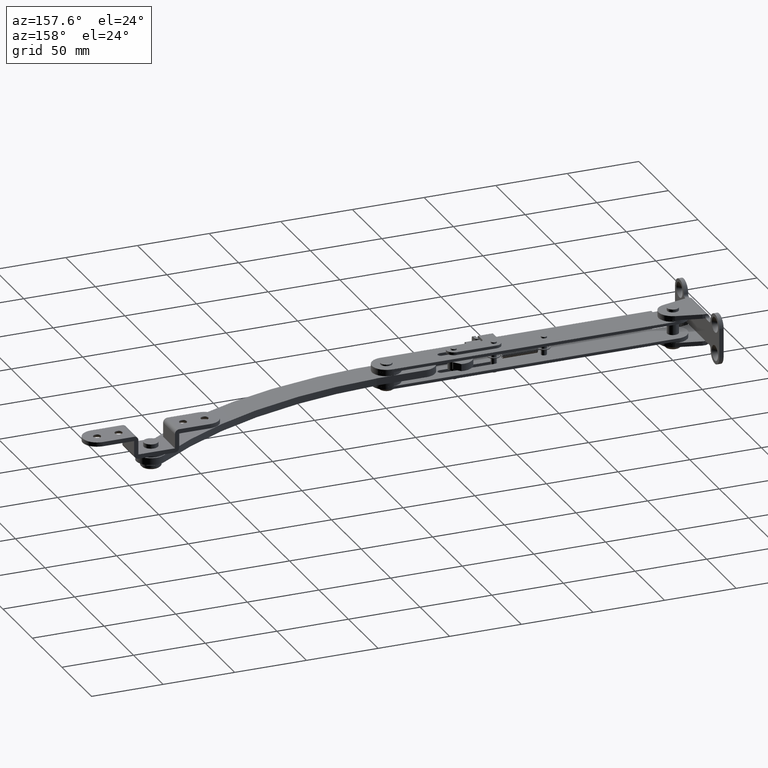
[diagram: clean part render]
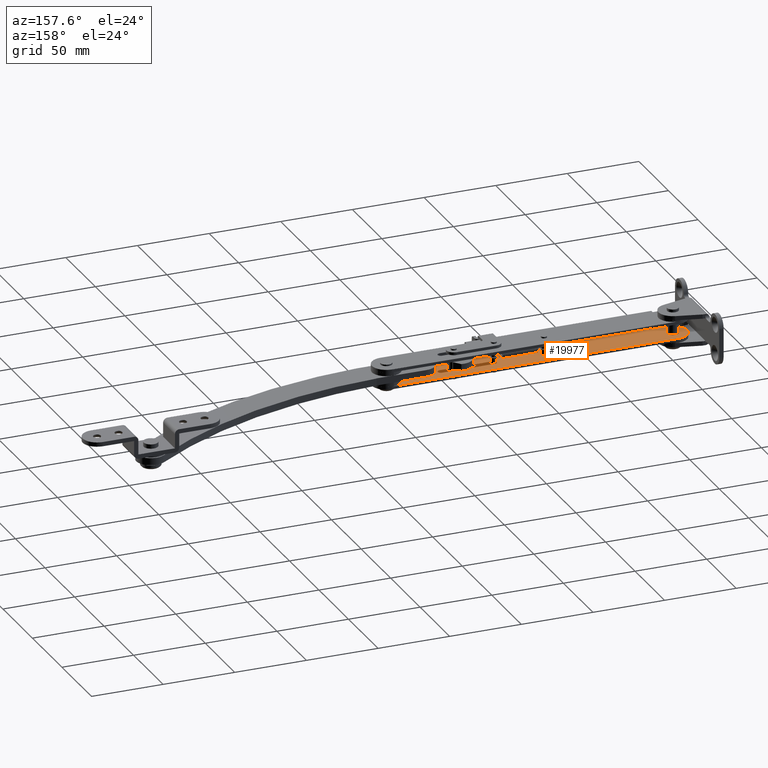
[diagram: same view with one face highlighted and labeled with its STEP entity id]
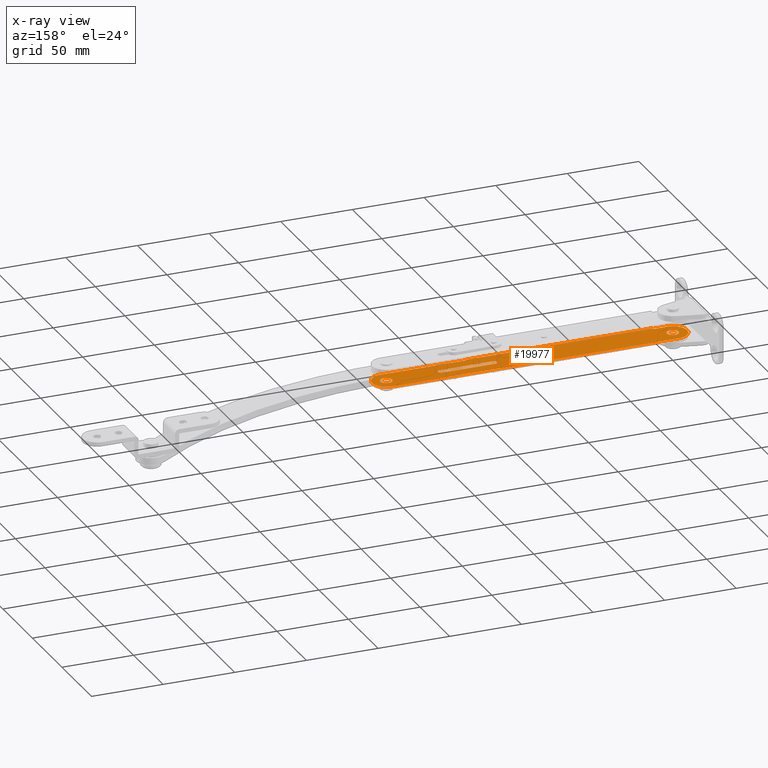
[diagram: x-ray of the same camera — body ghosted, the highlighted face saturated]
A machine part, auxiliary view. The second image highlights one B-rep face of the part: STEP entity #19977.
The next image is the same camera in x-ray: the body ghosted, the highlighted face saturated — about 0% of this face is hidden behind the body in this view.
In plain terms, the highlighted face is a freeform B-spline surface patch.
Its self-contained STEP definition (entity closure, byte-faithful):
#17774=CARTESIAN_POINT('',(89.751743990760332,1.984532427015592,-5.000000000000119));
#17775=VERTEX_POINT('',#17774);
#17776=CARTESIAN_POINT('',(88.0,0.0,-5.000000000000120));
#17777=VERTEX_POINT('',#17776);
#17778=CARTESIAN_POINT('',(89.751743990760332,1.984532427015592,-5.000000000000119));
#17779=CARTESIAN_POINT('',(88.000000000000014,1.765397191191886,-5.000000000000120));
#17780=CARTESIAN_POINT('',(88.0,0.0,-5.000000000000120));
#17788=(BOUNDED_CURVE()B_SPLINE_CURVE(2,(#17778,#17779,#17780),.UNSPECIFIED.,.F.,.U.)B_SPLINE_CURVE_WITH_KNOTS((3,3),(0.771473929834101,1.0),.UNSPECIFIED.)CURVE()GEOMETRIC_REPRESENTATION_ITEM()RATIONAL_B_SPLINE_CURVE((0.954005428599194,0.732265054905284,1.0))REPRESENTATION_ITEM(''));
#17789=EDGE_CURVE('',#17775,#17777,#17788,.T.);
#17791=CARTESIAN_POINT('',(90.017453075122191,-1.999923846092340,-5.000000000000121));
#17792=VERTEX_POINT('',#17791);
#17793=CARTESIAN_POINT('',(88.0,0.0,-5.000000000000120));
#17794=CARTESIAN_POINT('',(88.0,-2.000000000000000,-5.000000000000121));
#17795=CARTESIAN_POINT('',(90.0,-2.0,-5.000000000000120));
#17796=CARTESIAN_POINT('',(90.008726705767060,-2.0,-5.000000000000120));
#17797=CARTESIAN_POINT('',(90.017453075122191,-1.999923846092340,-5.000000000000121));
#17805=(BOUNDED_CURVE()B_SPLINE_CURVE(2,(#17793,#17794,#17795,#17796,#17797),.UNSPECIFIED.,.F.,.U.)B_SPLINE_CURVE_WITH_KNOTS((3,2,3),(0.0,0.250000000000000,0.251539895061680),.UNSPECIFIED.)CURVE()GEOMETRIC_REPRESENTATION_ITEM()RATIONAL_B_SPLINE_CURVE((1.0,0.707106781186548,1.0,0.998195900714998,0.996414026418634))REPRESENTATION_ITEM(''));
#17806=EDGE_CURVE('',#17777,#17792,#17805,.T.);
#17877=CARTESIAN_POINT('',(92.0,0.0,-5.000000000000120));
#17878=VERTEX_POINT('',#17877);
#17879=CARTESIAN_POINT('',(92.0,0.0,-5.000000000000120));
#17880=CARTESIAN_POINT('',(92.0,2.000000000000000,-5.000000000000121));
#17881=CARTESIAN_POINT('',(90.0,2.0,-5.000000000000120));
#17882=CARTESIAN_POINT('',(89.875390139793538,2.000000000000000,-5.000000000000119));
#17883=CARTESIAN_POINT('',(89.751743990760332,1.984532427015591,-5.000000000000119));
#17891=(BOUNDED_CURVE()B_SPLINE_CURVE(2,(#17879,#17880,#17881,#17882,#17883),.UNSPECIFIED.,.F.,.U.)B_SPLINE_CURVE_WITH_KNOTS((3,2,3),(0.500000000000000,0.750000000000000,0.771473929834101),.UNSPECIFIED.)CURVE()GEOMETRIC_REPRESENTATION_ITEM()RATIONAL_B_SPLINE_CURVE((1.0,0.707106781186548,1.0,0.974841726281264,0.954005428599194))REPRESENTATION_ITEM(''));
#17892=EDGE_CURVE('',#17878,#17775,#17891,.T.);
#17926=CARTESIAN_POINT('',(90.017453075122191,-1.999923846092340,-5.000000000000121));
#17927=CARTESIAN_POINT('',(92.0,-1.982622413010155,-5.000000000000121));
#17928=CARTESIAN_POINT('',(92.0,0.0,-5.000000000000120));
#17936=(BOUNDED_CURVE()B_SPLINE_CURVE(2,(#17926,#17927,#17928),.UNSPECIFIED.,.F.,.U.)B_SPLINE_CURVE_WITH_KNOTS((3,3),(0.251539895061680,0.500000000000000),.UNSPECIFIED.)CURVE()GEOMETRIC_REPRESENTATION_ITEM()RATIONAL_B_SPLINE_CURVE((0.996414026418634,0.708910880471549,1.0))REPRESENTATION_ITEM(''));
#17937=EDGE_CURVE('',#17792,#17878,#17936,.T.);
#18142=CARTESIAN_POINT('',(199.497250589896310,4.018678165783230,-5.000000000000120));
#18143=VERTEX_POINT('',#18142);
#18144=CARTESIAN_POINT('',(195.949969000000010,0.0,-5.000000000000120));
#18145=VERTEX_POINT('',#18144);
#18146=CARTESIAN_POINT('',(199.497250589896420,4.018678165783230,-5.000000000000120));
#18147=CARTESIAN_POINT('',(195.949969000000010,3.574929327595564,-5.000000000000120));
#18148=CARTESIAN_POINT('',(195.949969000000010,0.0,-5.000000000000120));
#18156=(BOUNDED_CURVE()B_SPLINE_CURVE(2,(#18146,#18147,#18148),.UNSPECIFIED.,.F.,.U.)B_SPLINE_CURVE_WITH_KNOTS((3,3),(0.771473929111733,1.0),.UNSPECIFIED.)CURVE()GEOMETRIC_REPRESENTATION_ITEM()RATIONAL_B_SPLINE_CURVE((0.954005430001031,0.732265054058977,1.0))REPRESENTATION_ITEM(''));
#18157=EDGE_CURVE('',#18143,#18145,#18156,.T.);
#18159=CARTESIAN_POINT('',(200.035311472254590,-4.049845788379470,-5.000000000000119));
#18160=VERTEX_POINT('',#18159);
#18161=CARTESIAN_POINT('',(195.949969000000010,0.0,-5.000000000000120));
#18162=CARTESIAN_POINT('',(195.949969000000010,-4.050000000000001,-5.000000000000121));
#18163=CARTESIAN_POINT('',(199.999968999999990,-4.050000000000000,-5.000000000000120));
#18164=CARTESIAN_POINT('',(200.017640574310180,-4.050000000000000,-5.000000000000121));
#18165=CARTESIAN_POINT('',(200.035311472254620,-4.049845788379470,-5.000000000000119));
#18173=(BOUNDED_CURVE()B_SPLINE_CURVE(2,(#18161,#18162,#18163,#18164,#18165),.UNSPECIFIED.,.F.,.U.)B_SPLINE_CURVE_WITH_KNOTS((3,2,3),(0.0,0.250000000000000,0.251539894638242),.UNSPECIFIED.)CURVE()GEOMETRIC_REPRESENTATION_ITEM()RATIONAL_B_SPLINE_CURVE((1.0,0.707106781186548,1.0,0.998195901211086,0.996414027398588))REPRESENTATION_ITEM(''));
#18174=EDGE_CURVE('',#18145,#18160,#18173,.T.);
#18245=CARTESIAN_POINT('',(204.049969000000000,0.0,-5.000000000000120));
#18246=VERTEX_POINT('',#18245);
#18247=CARTESIAN_POINT('',(204.049969000000000,0.0,-5.000000000000120));
#18248=CARTESIAN_POINT('',(204.049968999999980,4.050000000000001,-5.000000000000121));
#18249=CARTESIAN_POINT('',(199.999968999999990,4.050000000000000,-5.000000000000120));
#18250=CARTESIAN_POINT('',(199.747634041789380,4.049999999999999,-5.000000000000121));
#18251=CARTESIAN_POINT('',(199.497250589896310,4.018678165783231,-5.000000000000120));
#18259=(BOUNDED_CURVE()B_SPLINE_CURVE(2,(#18247,#18248,#18249,#18250,#18251),.UNSPECIFIED.,.F.,.U.)B_SPLINE_CURVE_WITH_KNOTS((3,2,3),(0.500000000000000,0.750000000000000,0.771473929111732),.UNSPECIFIED.)CURVE()GEOMETRIC_REPRESENTATION_ITEM()RATIONAL_B_SPLINE_CURVE((1.0,0.707106781186548,1.0,0.974841727127572,0.954005430001033))REPRESENTATION_ITEM(''));
#18260=EDGE_CURVE('',#18246,#18143,#18259,.T.);
#18294=CARTESIAN_POINT('',(200.035311472254620,-4.049845788379470,-5.000000000000119));
#18295=CARTESIAN_POINT('',(204.049969000000030,-4.014810395997320,-5.000000000000120));
#18296=CARTESIAN_POINT('',(204.049969000000000,0.0,-5.000000000000120));
#18304=(BOUNDED_CURVE()B_SPLINE_CURVE(2,(#18294,#18295,#18296),.UNSPECIFIED.,.F.,.U.)B_SPLINE_CURVE_WITH_KNOTS((3,3),(0.251539894638242,0.500000000000000),.UNSPECIFIED.)CURVE()GEOMETRIC_REPRESENTATION_ITEM()RATIONAL_B_SPLINE_CURVE((0.996414027398588,0.708910879975461,1.0))REPRESENTATION_ITEM(''));
#18305=EDGE_CURVE('',#18160,#18246,#18304,.T.);
#18510=CARTESIAN_POINT('',(-0.502718410103622,4.018678165783232,-5.000000000000120));
#18511=VERTEX_POINT('',#18510);
#18512=CARTESIAN_POINT('',(-4.050000000000000,0.0,-5.000000000000120));
#18513=VERTEX_POINT('',#18512);
#18514=CARTESIAN_POINT('',(-0.502718410103622,4.018678165783233,-5.000000000000120));
#18515=CARTESIAN_POINT('',(-4.050000000000001,3.574929327595585,-5.000000000000120));
#18516=CARTESIAN_POINT('',(-4.050000000000000,0.0,-5.000000000000120));
#18524=(BOUNDED_CURVE()B_SPLINE_CURVE(2,(#18514,#18515,#18516),.UNSPECIFIED.,.F.,.U.)B_SPLINE_CURVE_WITH_KNOTS((3,3),(0.771473929111732,1.0),.UNSPECIFIED.)CURVE()GEOMETRIC_REPRESENTATION_ITEM()RATIONAL_B_SPLINE_CURVE((0.954005430001033,0.732265054058975,1.0))REPRESENTATION_ITEM(''));
#18525=EDGE_CURVE('',#18511,#18513,#18524,.T.);
#18527=CARTESIAN_POINT('',(0.035342472254599,-4.049845788379469,-5.000000000000120));
#18528=VERTEX_POINT('',#18527);
#18529=CARTESIAN_POINT('',(-4.050000000000000,0.0,-5.000000000000120));
#18530=CARTESIAN_POINT('',(-4.050000000000001,-4.050000000000001,-5.000000000000121));
#18531=CARTESIAN_POINT('',(0.0,-4.050000000000000,-5.000000000000120));
#18532=CARTESIAN_POINT('',(0.017671574310225,-4.050000000000000,-5.000000000000120));
#18533=CARTESIAN_POINT('',(0.035342472254599,-4.049845788379469,-5.000000000000120));
#18541=(BOUNDED_CURVE()B_SPLINE_CURVE(2,(#18529,#18530,#18531,#18532,#18533),.UNSPECIFIED.,.F.,.U.)B_SPLINE_CURVE_WITH_KNOTS((3,2,3),(0.0,0.250000000000000,0.251539894638241),.UNSPECIFIED.)CURVE()GEOMETRIC_REPRESENTATION_ITEM()RATIONAL_B_SPLINE_CURVE((1.0,0.707106781186548,1.0,0.998195901211088,0.996414027398591))REPRESENTATION_ITEM(''));
#18542=EDGE_CURVE('',#18513,#18528,#18541,.T.);
#18613=CARTESIAN_POINT('',(4.050000000000000,0.0,-5.000000000000120));
#18614=VERTEX_POINT('',#18613);
#18615=CARTESIAN_POINT('',(4.050000000000000,0.0,-5.000000000000120));
#18616=CARTESIAN_POINT('',(4.050000000000001,4.050000000000001,-5.000000000000121));
#18617=CARTESIAN_POINT('',(0.0,4.050000000000000,-5.000000000000120));
#18618=CARTESIAN_POINT('',(-0.252334958210638,4.049999999999999,-5.000000000000121));
#18619=CARTESIAN_POINT('',(-0.502718410103622,4.018678165783233,-5.000000000000120));
#18627=(BOUNDED_CURVE()B_SPLINE_CURVE(2,(#18615,#18616,#18617,#18618,#18619),.UNSPECIFIED.,.F.,.U.)B_SPLINE_CURVE_WITH_KNOTS((3,2,3),(0.500000000000000,0.750000000000000,0.771473929111732),.UNSPECIFIED.)CURVE()GEOMETRIC_REPRESENTATION_ITEM()RATIONAL_B_SPLINE_CURVE((1.0,0.707106781186548,1.0,0.974841727127572,0.954005430001033))REPRESENTATION_ITEM(''));
#18628=EDGE_CURVE('',#18614,#18511,#18627,.T.);
#18662=CARTESIAN_POINT('',(0.035342472254599,-4.049845788379469,-5.000000000000120));
#18663=CARTESIAN_POINT('',(4.049999999999999,-4.014810395997347,-5.000000000000119));
#18664=CARTESIAN_POINT('',(4.050000000000000,0.0,-5.000000000000120));
#18672=(BOUNDED_CURVE()B_SPLINE_CURVE(2,(#18662,#18663,#18664),.UNSPECIFIED.,.F.,.U.)B_SPLINE_CURVE_WITH_KNOTS((3,3),(0.251539894638241,0.500000000000000),.UNSPECIFIED.)CURVE()GEOMETRIC_REPRESENTATION_ITEM()RATIONAL_B_SPLINE_CURVE((0.996414027398591,0.708910879975460,1.0))REPRESENTATION_ITEM(''));
#18673=EDGE_CURVE('',#18528,#18614,#18672,.T.);
#18987=CARTESIAN_POINT('',(125.0,-2.100006000000000,-5.000000000000110));
#18988=VERTEX_POINT('',#18987);
#18989=CARTESIAN_POINT('',(161.999969146607500,-2.100000000000000,-5.000000000000120));
#18990=VERTEX_POINT('',#18989);
#18991=CARTESIAN_POINT('',(125.0,-2.100006000000000,-5.000000000000110));
#18992=CARTESIAN_POINT('',(161.999969146607500,-2.100000000000000,-5.000000000000120));
#18993=QUASI_UNIFORM_CURVE('',1,(#18991,#18992),.UNSPECIFIED.,.F.,.U.);
#18994=EDGE_CURVE('',#18988,#18990,#18993,.T.);
#19036=CARTESIAN_POINT('',(161.999968999999990,2.100006000000095,-5.000000000000120));
#19037=VERTEX_POINT('',#19036);
#19038=CARTESIAN_POINT('',(161.999969146607500,-2.100000000000000,-5.000000000000120));
#19039=CARTESIAN_POINT('',(164.099969073303670,-2.099999853392396,-5.000000000000120));
#19040=CARTESIAN_POINT('',(164.099968999999990,0.000003073303797,-5.000000000000120));
#19041=CARTESIAN_POINT('',(164.099968926696250,2.100005999999990,-5.000000000000120));
#19042=CARTESIAN_POINT('',(161.999968999999990,2.100006000000095,-5.000000000000120));
#19050=(BOUNDED_CURVE()B_SPLINE_CURVE(2,(#19038,#19039,#19040,#19041,#19042),.UNSPECIFIED.,.F.,.U.)B_SPLINE_CURVE_WITH_KNOTS((3,2,3),(0.0,0.500000000000000,1.0),.UNSPECIFIED.)CURVE()GEOMETRIC_REPRESENTATION_ITEM()RATIONAL_B_SPLINE_CURVE((1.0,0.707106793527876,1.0,0.707106793527876,1.0))REPRESENTATION_ITEM(''));
#19051=EDGE_CURVE('',#18990,#19037,#19050,.T.);
#19084=CARTESIAN_POINT('',(125.0,2.100006000000095,-5.000000000000120));
#19085=VERTEX_POINT('',#19084);
#19086=CARTESIAN_POINT('',(161.999968999999990,2.100006000000095,-5.000000000000120));
#19087=CARTESIAN_POINT('',(125.0,2.100006000000095,-5.000000000000120));
#19088=QUASI_UNIFORM_CURVE('',1,(#19086,#19087),.UNSPECIFIED.,.F.,.U.);
#19089=EDGE_CURVE('',#19037,#19085,#19088,.T.);
#19125=CARTESIAN_POINT('',(125.0,2.100006000000095,-5.000000000000120));
#19126=CARTESIAN_POINT('',(122.899999999999990,2.100006000000095,-5.000000000000121));
#19127=CARTESIAN_POINT('',(122.900000000000010,4.751755E-014,-5.000000000000116));
#19128=CARTESIAN_POINT('',(122.899999999999990,-2.100006000000000,-5.000000000000110));
#19129=CARTESIAN_POINT('',(125.0,-2.100006000000000,-5.000000000000110));
#19137=(BOUNDED_CURVE()B_SPLINE_CURVE(2,(#19125,#19126,#19127,#19128,#19129),.UNSPECIFIED.,.F.,.U.)B_SPLINE_CURVE_WITH_KNOTS((3,2,3),(0.0,0.500000000000000,1.0),.UNSPECIFIED.)CURVE()GEOMETRIC_REPRESENTATION_ITEM()RATIONAL_B_SPLINE_CURVE((1.0,0.707106781186548,1.0,0.707106781186548,1.0))REPRESENTATION_ITEM(''));
#19138=EDGE_CURVE('',#19085,#18988,#19137,.T.);
#19561=CARTESIAN_POINT('',(10.0,-9.999999999999799,-5.000000000000120));
#19562=VERTEX_POINT('',#19561);
#19563=CARTESIAN_POINT('',(0.0,-9.999999999999799,-5.000000000000120));
#19564=VERTEX_POINT('',#19563);
#19565=CARTESIAN_POINT('',(10.0,-9.999999999999799,-5.000000000000120));
#19566=CARTESIAN_POINT('',(0.0,-9.999999999999799,-5.000000000000120));
#19567=QUASI_UNIFORM_CURVE('',1,(#19565,#19566),.UNSPECIFIED.,.F.,.U.);
#19568=EDGE_CURVE('',#19562,#19564,#19567,.T.);
#19597=CARTESIAN_POINT('',(199.999968831412500,-9.999999999999799,-5.000000000000120));
#19598=VERTEX_POINT('',#19597);
#19599=CARTESIAN_POINT('',(140.0,-9.999999999999799,-5.000000000000120));
#19600=VERTEX_POINT('',#19599);
#19601=CARTESIAN_POINT('',(199.999968831412500,-9.999999999999799,-5.000000000000120));
#19602=CARTESIAN_POINT('',(140.0,-9.999999999999799,-5.000000000000120));
#19603=QUASI_UNIFORM_CURVE('',1,(#19601,#19602),.UNSPECIFIED.,.F.,.U.);
#19604=EDGE_CURVE('',#19598,#19600,#19603,.T.);
#19646=CARTESIAN_POINT('',(199.991055733914490,10.0,-5.000000000000120));
#19647=VERTEX_POINT('',#19646);
#19648=CARTESIAN_POINT('',(199.991055733914490,10.000000000000229,-5.000000000000120));
#19649=CARTESIAN_POINT('',(205.766538211756430,10.005147842232377,-5.000000000000121));
#19650=CARTESIAN_POINT('',(208.657252168175600,5.005148124802156,-5.000000000000120));
#19651=CARTESIAN_POINT('',(211.547966124594720,0.005148407371938,-5.000000000000121));
#19652=CARTESIAN_POINT('',(208.661709864026790,-4.997425844997637,-5.000000000000120));
#19653=CARTESIAN_POINT('',(205.775453603458830,-10.000000097367215,-5.000000000000121));
#19654=CARTESIAN_POINT('',(199.999968831412500,-9.999999999999796,-5.000000000000120));
#19662=(BOUNDED_CURVE()B_SPLINE_CURVE(2,(#19648,#19649,#19650,#19651,#19652,#19653,#19654),.UNSPECIFIED.,.F.,.U.)B_SPLINE_CURVE_WITH_KNOTS((3,2,2,3),(0.0,0.333333333333333,0.666666666666667,1.0),.UNSPECIFIED.)CURVE()GEOMETRIC_REPRESENTATION_ITEM()RATIONAL_B_SPLINE_CURVE((1.0,0.865951115611089,1.0,0.865951115611089,1.0,0.865951115611089,1.0))REPRESENTATION_ITEM(''));
#19663=EDGE_CURVE('',#19647,#19598,#19662,.T.);
#19698=CARTESIAN_POINT('',(0.0,10.0,-5.000000000000120));
#19699=VERTEX_POINT('',#19698);
#19700=CARTESIAN_POINT('',(0.0,10.0,-5.000000000000120));
#19701=CARTESIAN_POINT('',(199.991055733914490,10.0,-5.000000000000120));
#19702=QUASI_UNIFORM_CURVE('',1,(#19700,#19701),.UNSPECIFIED.,.F.,.U.);
#19703=EDGE_CURVE('',#19699,#19647,#19702,.T.);
#19739=CARTESIAN_POINT('',(0.0,-9.999999999999799,-5.000000000000120));
#19740=CARTESIAN_POINT('',(-10.000000000000002,-10.000000000000002,-5.000000000000121));
#19741=CARTESIAN_POINT('',(-10.0,0.0,-5.000000000000120));
#19742=CARTESIAN_POINT('',(-10.000000000000002,10.000000000000002,-5.000000000000121));
#19743=CARTESIAN_POINT('',(0.0,10.0,-5.000000000000120));
#19751=(BOUNDED_CURVE()B_SPLINE_CURVE(2,(#19739,#19740,#19741,#19742,#19743),.UNSPECIFIED.,.F.,.U.)B_SPLINE_CURVE_WITH_KNOTS((3,2,3),(0.0,0.500000000000000,1.0),.UNSPECIFIED.)CURVE()GEOMETRIC_REPRESENTATION_ITEM()RATIONAL_B_SPLINE_CURVE((1.0,0.707106781186548,1.0,0.707106781186548,1.0))REPRESENTATION_ITEM(''));
#19752=EDGE_CURVE('',#19564,#19699,#19751,.T.);
#19813=CARTESIAN_POINT('',(140.0,-11.0,-5.000000000000120));
#19814=VERTEX_POINT('',#19813);
#19815=CARTESIAN_POINT('',(140.0,-9.999999999999799,-5.000000000000120));
#19816=CARTESIAN_POINT('',(140.0,-11.0,-5.000000000000120));
#19817=QUASI_UNIFORM_CURVE('',1,(#19815,#19816),.UNSPECIFIED.,.F.,.U.);
#19818=EDGE_CURVE('',#19600,#19814,#19817,.T.);
#19856=CARTESIAN_POINT('',(10.0,-11.0,-5.000000000000110));
#19857=VERTEX_POINT('',#19856);
#19863=CARTESIAN_POINT('',(10.0,-11.0,-5.000000000000110));
#19864=CARTESIAN_POINT('',(10.0,-9.999999999999799,-5.000000000000120));
#19865=QUASI_UNIFORM_CURVE('',1,(#19863,#19864),.UNSPECIFIED.,.F.,.U.);
#19866=EDGE_CURVE('',#19857,#19562,#19865,.T.);
#19889=CARTESIAN_POINT('',(10.0,-11.0,-5.000000000000110));
#19890=CARTESIAN_POINT('',(140.0,-11.0,-5.000000000000120));
#19891=QUASI_UNIFORM_CURVE('',1,(#19889,#19890),.UNSPECIFIED.,.F.,.U.);
#19892=EDGE_CURVE('',#19857,#19814,#19891,.T.);
#19938=CARTESIAN_POINT('',(-20.988998074757351,11.048949959297930,-5.000000000000110));
#19939=CARTESIAN_POINT('',(220.988973968809200,11.048949959297930,-5.000000000000110));
#19940=CARTESIAN_POINT('',(-20.988998074757351,-12.048950522561819,-5.000000000000110));
#19941=CARTESIAN_POINT('',(220.988973968809200,-12.048950522561819,-5.000000000000110));
#19942=B_SPLINE_SURFACE_WITH_KNOTS('',1,1,((#19938,#19940),(#19939,#19941)),.UNSPECIFIED.,.F.,.F.,.U.,(2,2),(2,2),(0.0,241.977972043566610),(0.0,23.097900481859750),.UNSPECIFIED.);
#19943=ORIENTED_EDGE('',*,*,#19866,.F.);
#19944=ORIENTED_EDGE('',*,*,#19892,.T.);
#19945=ORIENTED_EDGE('',*,*,#19818,.F.);
#19946=ORIENTED_EDGE('',*,*,#19604,.F.);
#19947=ORIENTED_EDGE('',*,*,#19663,.F.);
#19948=ORIENTED_EDGE('',*,*,#19703,.F.);
#19949=ORIENTED_EDGE('',*,*,#19752,.F.);
#19950=ORIENTED_EDGE('',*,*,#19568,.F.);
#19951=EDGE_LOOP('',(#19943,#19944,#19945,#19946,#19947,#19948,#19949,#19950));
#19952=FACE_OUTER_BOUND('',#19951,.T.);
#19953=ORIENTED_EDGE('',*,*,#19138,.F.);
#19954=ORIENTED_EDGE('',*,*,#19089,.F.);
#19955=ORIENTED_EDGE('',*,*,#19051,.F.);
#19956=ORIENTED_EDGE('',*,*,#18994,.F.);
#19957=EDGE_LOOP('',(#19953,#19954,#19955,#19956));
#19958=FACE_BOUND('',#19957,.T.);
#19959=ORIENTED_EDGE('',*,*,#18542,.F.);
#19960=ORIENTED_EDGE('',*,*,#18525,.F.);
#19961=ORIENTED_EDGE('',*,*,#18628,.F.);
#19962=ORIENTED_EDGE('',*,*,#18673,.F.);
#19963=EDGE_LOOP('',(#19959,#19960,#19961,#19962));
#19964=FACE_BOUND('',#19963,.T.);
#19965=ORIENTED_EDGE('',*,*,#18174,.F.);
#19966=ORIENTED_EDGE('',*,*,#18157,.F.);
#19967=ORIENTED_EDGE('',*,*,#18260,.F.);
#19968=ORIENTED_EDGE('',*,*,#18305,.F.);
#19969=EDGE_LOOP('',(#19965,#19966,#19967,#19968));
#19970=FACE_BOUND('',#19969,.T.);
#19971=ORIENTED_EDGE('',*,*,#17806,.F.);
#19972=ORIENTED_EDGE('',*,*,#17789,.F.);
#19973=ORIENTED_EDGE('',*,*,#17892,.F.);
#19974=ORIENTED_EDGE('',*,*,#17937,.F.);
#19975=EDGE_LOOP('',(#19971,#19972,#19973,#19974));
#19976=FACE_BOUND('',#19975,.T.);
#19977=ADVANCED_FACE('',(#19952,#19958,#19964,#19970,#19976),#19942,.F.);